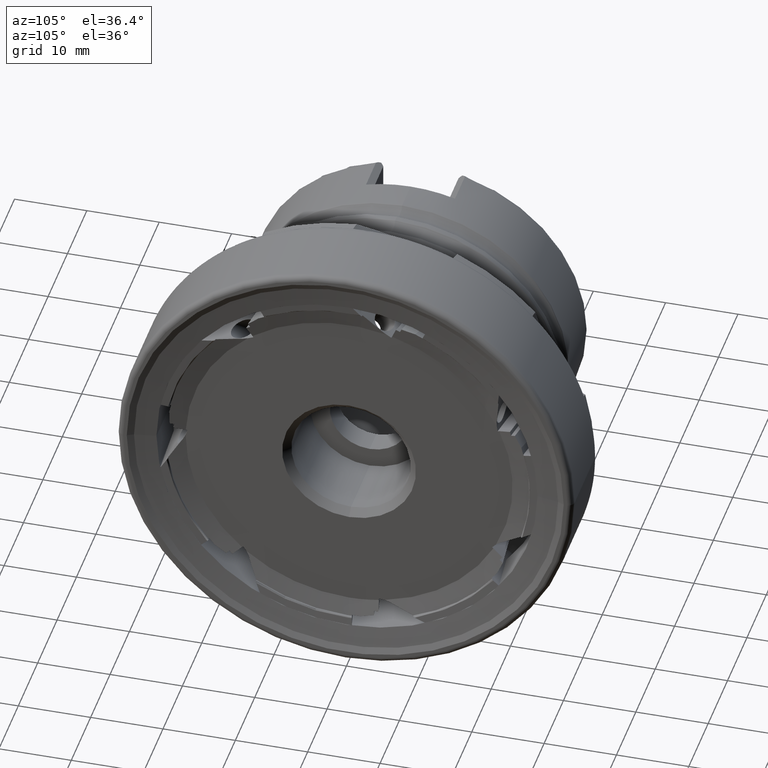
[diagram: clean part render]
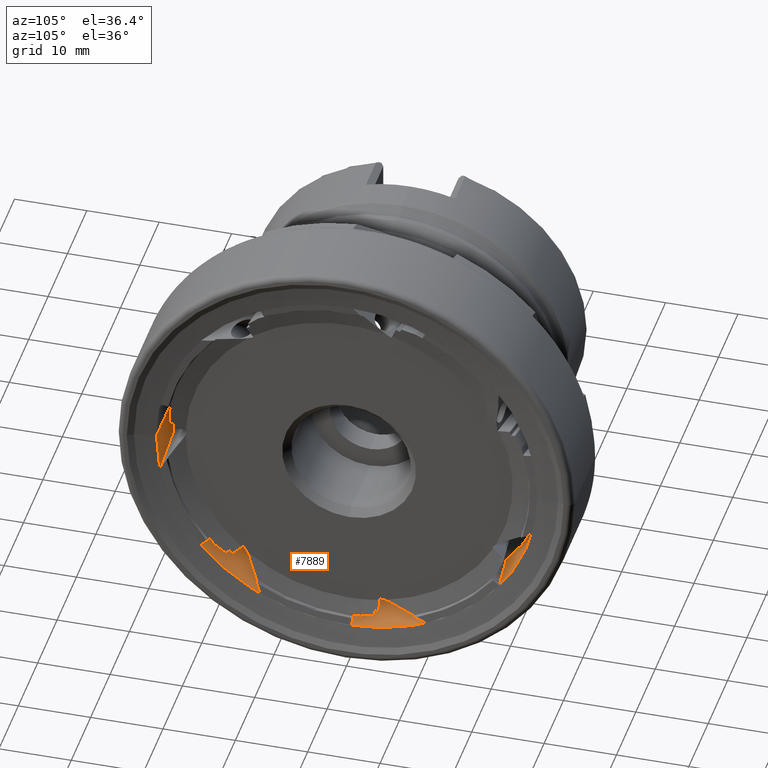
[diagram: same view with one face highlighted and labeled with its STEP entity id]
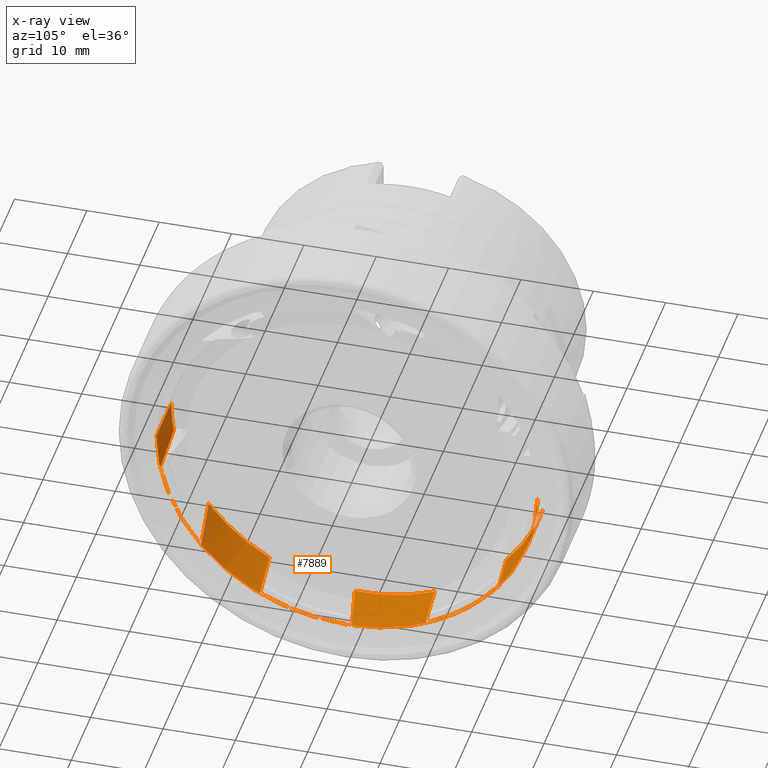
[diagram: x-ray of the same camera — body ghosted, the highlighted face saturated]
A machine part, auxiliary view. The second image highlights one B-rep face of the part: STEP entity #7889.
The next image is the same camera in x-ray: the body ghosted, the highlighted face saturated — about 0% of this face is hidden behind the body in this view.
In plain terms, the highlighted cylindrical surface (partial cylindrical patch) has radius 26.3377 mm, axis along (1, 0, -0).
Its self-contained STEP definition (entity closure, byte-faithful):
#650 = CARTESIAN_POINT ( 'NONE',  ( -0.3557611103710798800, 0.0000000000000000000, -26.33774320239812300 ) ) ;
#680 = CARTESIAN_POINT ( 'NONE',  ( -6.769027050296090300, 10.20196392134848100, -24.28161133744984600 ) ) ;
#684 = CARTESIAN_POINT ( 'NONE',  ( -0.3557611103710798800, 26.33774320239812300, 0.0000000000000000000 ) ) ;
#691 = CARTESIAN_POINT ( 'NONE',  ( -7.896370246742992400, -26.33774320239812300, 0.0000000000000000000 ) ) ;
#704 = CARTESIAN_POINT ( 'NONE',  ( -7.896370246742999500, 25.30964132982302300, -7.286890472017705500 ) ) ;
#734 = CARTESIAN_POINT ( 'NONE',  ( -0.3000000000000036000, -26.33774320239812300, 3.225443290958182400E-015 ) ) ;
#736 = CARTESIAN_POINT ( 'NONE',  ( -0.3557611103710798800, 10.81536209198497300, -24.01467592566518400 ) ) ;
#750 = CARTESIAN_POINT ( 'NONE',  ( -7.896370246742997700, 10.08318287752752900, -24.33117629819413400 ) ) ;
#755 = CARTESIAN_POINT ( 'NONE',  ( -7.896370246742997700, 19.98562374653297600, -17.15376228287792800 ) ) ;
#767 = CARTESIAN_POINT ( 'NONE',  ( -7.896370246742994100, -21.17090131028734500, -15.66747122880849800 ) ) ;
#778 = CARTESIAN_POINT ( 'NONE',  ( -0.3557611103710798800, -25.81922233571609800, -5.200430268192014300 ) ) ;
#782 = CARTESIAN_POINT ( 'NONE',  ( -6.769027050296090300, 25.34494865256235800, -7.163120464884453800 ) ) ;
#816 = CARTESIAN_POINT ( 'NONE',  ( -7.896370246742992400, -25.96486218048604000, -4.416180356805443600 ) ) ;
#823 = CARTESIAN_POINT ( 'NONE',  ( -7.896370246742995900, -0.9505188057772572300, -26.32058568868352600 ) ) ;
#847 = CARTESIAN_POINT ( 'NONE',  ( -0.3557611103710907600, 0.6522871451475134000, -26.32966461001248600 ) ) ;
#864 = CARTESIAN_POINT ( 'NONE',  ( -7.896370246742994100, -12.73611794099315600, -23.05359010628454500 ) ) ;
#884 = CARTESIAN_POINT ( 'NONE',  ( -0.3557611103710642800, 20.99205509781490900, -15.90629874501832400 ) ) ;
#885 = CARTESIAN_POINT ( 'NONE',  ( -0.3557611103710798800, -12.03216171218998700, -23.42869611239980200 ) ) ;
#889 = CARTESIAN_POINT ( 'NONE',  ( -0.3557611103710798800, 25.51869764771420500, -6.517114956789854800 ) ) ;
#896 = CARTESIAN_POINT ( 'NONE',  ( -6.769027050296093000, -25.94297118559758500, -4.543012553220901100 ) ) ;
#902 = CARTESIAN_POINT ( 'NONE',  ( -0.3000000000000100900, 26.33774320239812300, 0.0000000000000000000 ) ) ;
#912 = CARTESIAN_POINT ( 'NONE',  ( -0.3557611103710933700, -20.17866633204909000, -16.92625599638907400 ) ) ;
#917 = CARTESIAN_POINT ( 'NONE',  ( -6.769027050296086800, -12.62330772477946200, -23.11555361831058200 ) ) ;
#2221 = FACE_OUTER_BOUND ( 'NONE', #7159, .T. ) ;
#2229 = CYLINDRICAL_SURFACE ( 'NONE', #10728, 26.33774320239812300 ) ;
#3559 = CARTESIAN_POINT ( 'NONE',  ( 9.669514060643575000, 0.0000000000000000000, 0.0000000000000000000 ) ) ;
#3560 = DIRECTION ( 'NONE',  ( 1.000000000000000000, 1.224931307836576000E-016, -0.0000000000000000000 ) ) ;
#3568 = DIRECTION ( 'NONE',  ( -1.317290902751953200E-016, 1.000000000000000000, 0.0000000000000000000 ) ) ;
#4460 = EDGE_CURVE ( 'NONE', #6746, #6910, #9934, .T. ) ;
#4487 = EDGE_CURVE ( 'NONE', #6893, #6925, #8477, .T. ) ;
#4488 = EDGE_CURVE ( 'NONE', #6855, #6674, #9965, .T. ) ;
#4490 = EDGE_CURVE ( 'NONE', #6700, #6897, #9967, .T. ) ;
#4492 = EDGE_CURVE ( 'NONE', #6897, #6790, #8315, .T. ) ;
#4495 = EDGE_CURVE ( 'NONE', #6674, #6893, #9962, .T. ) ;
#4497 = EDGE_CURVE ( 'NONE', #6892, #6748, #9970, .T. ) ;
#4498 = EDGE_CURVE ( 'NONE', #6700, #6910, #9973, .T. ) ;
#4505 = EDGE_CURVE ( 'NONE', #6920, #6786, #9980, .T. ) ;
#4509 = EDGE_CURVE ( 'NONE', #6705, #6746, #9981, .T. ) ;
#4515 = EDGE_CURVE ( 'NONE', #6831, #6761, #9987, .T. ) ;
#4519 = EDGE_CURVE ( 'NONE', #6776, #6872, #9986, .T. ) ;
#4520 = EDGE_CURVE ( 'NONE', #6765, #6717, #9991, .T. ) ;
#4521 = EDGE_CURVE ( 'NONE', #6855, #6831, #8378, .T. ) ;
#4522 = EDGE_CURVE ( 'NONE', #6705, #6824, #9992, .T. ) ;
#4524 = EDGE_CURVE ( 'NONE', #6761, #6696, #8403, .T. ) ;
#4527 = EDGE_CURVE ( 'NONE', #6872, #6925, #8323, .T. ) ;
#4531 = EDGE_CURVE ( 'NONE', #6920, #6776, #8455, .T. ) ;
#4532 = EDGE_CURVE ( 'NONE', #6786, #6904, #8461, .T. ) ;
#4535 = EDGE_CURVE ( 'NONE', #6824, #6904, #8433, .T. ) ;
#4543 = EDGE_CURVE ( 'NONE', #6892, #6765, #8448, .T. ) ;
#4548 = EDGE_CURVE ( 'NONE', #6748, #6696, #8470, .T. ) ;
#4549 = EDGE_CURVE ( 'NONE', #6717, #6790, #8319, .T. ) ;
#4750 = ORIENTED_EDGE ( 'NONE', *, *, #4488, .T. ) ;
#4752 = ORIENTED_EDGE ( 'NONE', *, *, #4492, .T. ) ;
#4755 = ORIENTED_EDGE ( 'NONE', *, *, #4460, .T. ) ;
#4758 = ORIENTED_EDGE ( 'NONE', *, *, #4509, .T. ) ;
#4762 = ORIENTED_EDGE ( 'NONE', *, *, #4532, .T. ) ;
#4763 = ORIENTED_EDGE ( 'NONE', *, *, #4495, .T. ) ;
#4764 = ORIENTED_EDGE ( 'NONE', *, *, #4521, .F. ) ;
#4766 = ORIENTED_EDGE ( 'NONE', *, *, #4519, .F. ) ;
#4778 = ORIENTED_EDGE ( 'NONE', *, *, #4535, .F. ) ;
#4780 = ORIENTED_EDGE ( 'NONE', *, *, #4490, .T. ) ;
#4783 = ORIENTED_EDGE ( 'NONE', *, *, #4527, .F. ) ;
#4787 = ORIENTED_EDGE ( 'NONE', *, *, #4487, .T. ) ;
#4788 = ORIENTED_EDGE ( 'NONE', *, *, #4520, .F. ) ;
#4796 = ORIENTED_EDGE ( 'NONE', *, *, #4497, .T. ) ;
#4799 = ORIENTED_EDGE ( 'NONE', *, *, #4498, .F. ) ;
#4800 = ORIENTED_EDGE ( 'NONE', *, *, #4548, .T. ) ;
#4801 = ORIENTED_EDGE ( 'NONE', *, *, #4522, .F. ) ;
#4807 = ORIENTED_EDGE ( 'NONE', *, *, #4531, .F. ) ;
#4808 = ORIENTED_EDGE ( 'NONE', *, *, #4549, .F. ) ;
#4813 = ORIENTED_EDGE ( 'NONE', *, *, #4515, .F. ) ;
#4816 = ORIENTED_EDGE ( 'NONE', *, *, #4505, .T. ) ;
#4820 = ORIENTED_EDGE ( 'NONE', *, *, #4524, .F. ) ;
#4822 = ORIENTED_EDGE ( 'NONE', *, *, #4543, .F. ) ;
#6674 = VERTEX_POINT ( 'NONE', #650 ) ;
#6696 = VERTEX_POINT ( 'NONE', #680 ) ;
#6700 = VERTEX_POINT ( 'NONE', #684 ) ;
#6705 = VERTEX_POINT ( 'NONE', #691 ) ;
#6717 = VERTEX_POINT ( 'NONE', #704 ) ;
#6746 = VERTEX_POINT ( 'NONE', #734 ) ;
#6748 = VERTEX_POINT ( 'NONE', #736 ) ;
#6761 = VERTEX_POINT ( 'NONE', #750 ) ;
#6765 = VERTEX_POINT ( 'NONE', #755 ) ;
#6776 = VERTEX_POINT ( 'NONE', #767 ) ;
#6786 = VERTEX_POINT ( 'NONE', #778 ) ;
#6790 = VERTEX_POINT ( 'NONE', #782 ) ;
#6824 = VERTEX_POINT ( 'NONE', #816 ) ;
#6831 = VERTEX_POINT ( 'NONE', #823 ) ;
#6855 = VERTEX_POINT ( 'NONE', #847 ) ;
#6872 = VERTEX_POINT ( 'NONE', #864 ) ;
#6892 = VERTEX_POINT ( 'NONE', #884 ) ;
#6893 = VERTEX_POINT ( 'NONE', #885 ) ;
#6897 = VERTEX_POINT ( 'NONE', #889 ) ;
#6904 = VERTEX_POINT ( 'NONE', #896 ) ;
#6910 = VERTEX_POINT ( 'NONE', #902 ) ;
#6920 = VERTEX_POINT ( 'NONE', #912 ) ;
#6925 = VERTEX_POINT ( 'NONE', #917 ) ;
#7159 = EDGE_LOOP ( 'NONE', ( #4801, #4758, #4755, #4799, #4780, #4752, #4808, #4788, #4822, #4796, #4800, #4820, #4813, #4764, #4750, #4763, #4787, #4783, #4766, #4807, #4816, #4762, #4778 ) ) ;
#7889 = ADVANCED_FACE ( 'NONE', ( #2221 ), #2229, .F. ) ;
#8269 = AXIS2_PLACEMENT_3D ( 'NONE', #9537, #9538, #9539 ) ;
#8293 = AXIS2_PLACEMENT_3D ( 'NONE', #9622, #9623, #9624 ) ;
#8294 = AXIS2_PLACEMENT_3D ( 'NONE', #9650, #9651, #9652 ) ;
#8295 = AXIS2_PLACEMENT_3D ( 'NONE', #9668, #9669, #9670 ) ;
#8296 = AXIS2_PLACEMENT_3D ( 'NONE', #9674, #9675, #9676 ) ;
#8299 = AXIS2_PLACEMENT_3D ( 'NONE', #9703, #9704, #9705 ) ;
#8301 = AXIS2_PLACEMENT_3D ( 'NONE', #9766, #9767, #9768 ) ;
#8303 = AXIS2_PLACEMENT_3D ( 'NONE', #9776, #9777, #9778 ) ;
#8304 = AXIS2_PLACEMENT_3D ( 'NONE', #9780, #9781, #9782 ) ;
#8305 = AXIS2_PLACEMENT_3D ( 'NONE', #9788, #9789, #9790 ) ;
#8315 =( BOUNDED_CURVE ( )  B_SPLINE_CURVE ( 3, ( #9655, #9653, #9648, #9656 ),
 .UNSPECIFIED., .F., .F. ) 
 B_SPLINE_CURVE_WITH_KNOTS ( ( 4, 4 ),
 ( 2.376410749964307500, 2.401810847009365500 ),
 .UNSPECIFIED. ) 
 CURVE ( )  GEOMETRIC_REPRESENTATION_ITEM ( )  RATIONAL_B_SPLINE_CURVE ( ( 1.000000000000000000, 0.9999462369784729600, 0.9999462369784729600, 1.000000000000000000 ) ) 
 REPRESENTATION_ITEM ( '' )  );
#8319 = B_SPLINE_CURVE_WITH_KNOTS ( 'NONE', 3,
 ( #9876, #9877, #9890, #9891 ),
 .UNSPECIFIED., .F., .F.,
 ( 4, 4 ),
 ( 2.014737668395677500E-007, 0.001134836575455852400 ),
 .UNSPECIFIED. ) ;
#8323 = B_SPLINE_CURVE_WITH_KNOTS ( 'NONE', 3,
 ( #9802, #9796, #9804, #9805 ),
 .UNSPECIFIED., .F., .F.,
 ( 4, 4 ),
 ( 2.014737668412557800E-007, 0.001134836575455851800 ),
 .UNSPECIFIED. ) ;
#8378 =( BOUNDED_CURVE ( )  B_SPLINE_CURVE ( 3, ( #9783, #9770, #9779, #9784 ),
 .UNSPECIFIED., .F., .F. ) 
 B_SPLINE_CURVE_WITH_KNOTS ( ( 4, 4 ),
 ( 1.546027543818103500, 1.606893772764859100 ),
 .UNSPECIFIED. ) 
 CURVE ( )  GEOMETRIC_REPRESENTATION_ITEM ( )  RATIONAL_B_SPLINE_CURVE ( ( 1.000000000000000000, 0.9996912990081678900, 0.9996912990081678900, 1.000000000000000000 ) ) 
 REPRESENTATION_ITEM ( '' )  );
#8403 = B_SPLINE_CURVE_WITH_KNOTS ( 'NONE', 3,
 ( #9794, #9793, #9787, #9795 ),
 .UNSPECIFIED., .F., .F.,
 ( 4, 4 ),
 ( 2.014737668429859500E-007, 0.001134836575455852200 ),
 .UNSPECIFIED. ) ;
#8433 = B_SPLINE_CURVE_WITH_KNOTS ( 'NONE', 3,
 ( #9842, #9843, #9848, #9849 ),
 .UNSPECIFIED., .F., .F.,
 ( 4, 4 ),
 ( 2.014737668447740100E-007, 0.001134836575455845300 ),
 .UNSPECIFIED. ) ;
#8448 =( BOUNDED_CURVE ( )  B_SPLINE_CURVE ( 3, ( #9871, #9863, #9867, #9872 ),
 .UNSPECIFIED., .F., .F. ) 
 B_SPLINE_CURVE_WITH_KNOTS ( ( 4, 4 ),
 ( 1.546027543818103300, 1.606893772764859100 ),
 .UNSPECIFIED. ) 
 CURVE ( )  GEOMETRIC_REPRESENTATION_ITEM ( )  RATIONAL_B_SPLINE_CURVE ( ( 1.000000000000000000, 0.9996912990081678900, 0.9996912990081678900, 1.000000000000000000 ) ) 
 REPRESENTATION_ITEM ( '' )  );
#8455 =( BOUNDED_CURVE ( )  B_SPLINE_CURVE ( 3, ( #9832, #9831, #9814, #9833 ),
 .UNSPECIFIED., .F., .F. ) 
 B_SPLINE_CURVE_WITH_KNOTS ( ( 4, 4 ),
 ( 1.546027543818103500, 1.606893772764859100 ),
 .UNSPECIFIED. ) 
 CURVE ( )  GEOMETRIC_REPRESENTATION_ITEM ( )  RATIONAL_B_SPLINE_CURVE ( ( 1.000000000000000000, 0.9996912990081678900, 0.9996912990081678900, 1.000000000000000000 ) ) 
 REPRESENTATION_ITEM ( '' )  );
#8461 =( BOUNDED_CURVE ( )  B_SPLINE_CURVE ( 3, ( #9836, #9835, #9816, #9837 ),
 .UNSPECIFIED., .F., .F. ) 
 B_SPLINE_CURVE_WITH_KNOTS ( ( 4, 4 ),
 ( 2.376410749964307500, 2.401810847009365500 ),
 .UNSPECIFIED. ) 
 CURVE ( )  GEOMETRIC_REPRESENTATION_ITEM ( )  RATIONAL_B_SPLINE_CURVE ( ( 1.000000000000000000, 0.9999462369784729600, 0.9999462369784729600, 1.000000000000000000 ) ) 
 REPRESENTATION_ITEM ( '' )  );
#8470 =( BOUNDED_CURVE ( )  B_SPLINE_CURVE ( 3, ( #9881, #9882, #9886, #9887 ),
 .UNSPECIFIED., .F., .F. ) 
 B_SPLINE_CURVE_WITH_KNOTS ( ( 4, 4 ),
 ( 2.376410749964307500, 2.401810847009365500 ),
 .UNSPECIFIED. ) 
 CURVE ( )  GEOMETRIC_REPRESENTATION_ITEM ( )  RATIONAL_B_SPLINE_CURVE ( ( 1.000000000000000000, 0.9999462369784729600, 0.9999462369784729600, 1.000000000000000000 ) ) 
 REPRESENTATION_ITEM ( '' )  );
#8477 =( BOUNDED_CURVE ( )  B_SPLINE_CURVE ( 3, ( #9618, #9606, #9613, #9619 ),
 .UNSPECIFIED., .F., .F. ) 
 B_SPLINE_CURVE_WITH_KNOTS ( ( 4, 4 ),
 ( 2.376410749964307500, 2.401810847009366000 ),
 .UNSPECIFIED. ) 
 CURVE ( )  GEOMETRIC_REPRESENTATION_ITEM ( )  RATIONAL_B_SPLINE_CURVE ( ( 1.000000000000000000, 0.9999462369784729600, 0.9999462369784729600, 1.000000000000000000 ) ) 
 REPRESENTATION_ITEM ( '' )  );
#9537 = CARTESIAN_POINT ( 'NONE',  ( -0.3000000000000068700, -1.221196989679927700E-015, 0.0000000000000000000 ) ) ;
#9538 = DIRECTION ( 'NONE',  ( 1.000000000000000000, 1.224931307836576000E-016, -0.0000000000000000000 ) ) ;
#9539 = DIRECTION ( 'NONE',  ( -1.234960221329956100E-016, 1.000000000000000000, 0.0000000000000000000 ) ) ;
#9606 = CARTESIAN_POINT ( 'NONE',  ( -2.522458184460409000, -12.23053076306250000, -23.32682068205827600 ) ) ;
#9613 = CARTESIAN_POINT ( 'NONE',  ( -4.660328436133036200, -12.42759002842718100, -23.22243423856459500 ) ) ;
#9618 = CARTESIAN_POINT ( 'NONE',  ( -0.3557611103710798800, -12.03216171218998700, -23.42869611239980200 ) ) ;
#9619 = CARTESIAN_POINT ( 'NONE',  ( -6.769027050296086800, -12.62330772477946200, -23.11555361831058200 ) ) ;
#9622 = CARTESIAN_POINT ( 'NONE',  ( -0.3557611103710798800, 0.0000000000000000000, 0.0000000000000000000 ) ) ;
#9623 = DIRECTION ( 'NONE',  ( -1.000000000000000000, 0.0000000000000000000, 0.0000000000000000000 ) ) ;
#9624 = DIRECTION ( 'NONE',  ( 0.0000000000000000000, -1.083577672034152900E-013, -1.000000000000000000 ) ) ;
#9648 = CARTESIAN_POINT ( 'NONE',  ( -4.660328436132918000, 25.40559826793519700, -6.948526644361924000 ) ) ;
#9650 = CARTESIAN_POINT ( 'NONE',  ( -0.3557611103710798800, 0.0000000000000000000, 0.0000000000000000000 ) ) ;
#9651 = DIRECTION ( 'NONE',  ( -1.000000000000000000, 0.0000000000000000000, 0.0000000000000000000 ) ) ;
#9652 = DIRECTION ( 'NONE',  ( 0.0000000000000000000, 4.440892098500626200E-015, -1.000000000000000000 ) ) ;
#9653 = CARTESIAN_POINT ( 'NONE',  ( -2.522458184460301600, 25.46351771357688800, -6.733179897305261900 ) ) ;
#9655 = CARTESIAN_POINT ( 'NONE',  ( -0.3557611103710798800, 25.51869764771420500, -6.517114956789854800 ) ) ;
#9656 = CARTESIAN_POINT ( 'NONE',  ( -6.769027050296090300, 25.34494865256235800, -7.163120464884453800 ) ) ;
#9667 = DIRECTION ( 'NONE',  ( 1.000000000000000000, 1.224931307836576000E-016, -0.0000000000000000000 ) ) ;
#9668 = CARTESIAN_POINT ( 'NONE',  ( -0.3557611103710798800, 0.0000000000000000000, 0.0000000000000000000 ) ) ;
#9669 = DIRECTION ( 'NONE',  ( -1.000000000000000000, 0.0000000000000000000, 0.0000000000000000000 ) ) ;
#9670 = DIRECTION ( 'NONE',  ( 0.0000000000000000000, 0.0000000000000000000, -1.000000000000000000 ) ) ;
#9671 = CARTESIAN_POINT ( 'NONE',  ( 9.669514060643573200, 26.33774320239812300, 0.0000000000000000000 ) ) ;
#9674 = CARTESIAN_POINT ( 'NONE',  ( -0.3557611103710798800, 0.0000000000000000000, 0.0000000000000000000 ) ) ;
#9675 = DIRECTION ( 'NONE',  ( -1.000000000000000000, 0.0000000000000000000, 0.0000000000000000000 ) ) ;
#9676 = DIRECTION ( 'NONE',  ( 0.0000000000000000000, 2.664535259100376100E-015, -1.000000000000000000 ) ) ;
#9703 = CARTESIAN_POINT ( 'NONE',  ( -0.3557611103710798800, 0.0000000000000000000, 0.0000000000000000000 ) ) ;
#9704 = DIRECTION ( 'NONE',  ( -1.000000000000000000, 0.0000000000000000000, 0.0000000000000000000 ) ) ;
#9705 = DIRECTION ( 'NONE',  ( 0.0000000000000000000, 0.0000000000000000000, -1.000000000000000000 ) ) ;
#9713 = CARTESIAN_POINT ( 'NONE',  ( 9.669514060643578500, -26.33774320239812300, 3.225443290958182400E-015 ) ) ;
#9714 = DIRECTION ( 'NONE',  ( 1.000000000000000000, 1.224931307836576000E-016, -0.0000000000000000000 ) ) ;
#9766 = CARTESIAN_POINT ( 'NONE',  ( -7.896370246742995900, -2.151700163795301900E-015, 0.0000000000000000000 ) ) ;
#9767 = DIRECTION ( 'NONE',  ( 1.000000000000000000, 1.224931307836576000E-016, -0.0000000000000000000 ) ) ;
#9768 = DIRECTION ( 'NONE',  ( -1.317290902751953500E-016, 1.000000000000000000, 0.0000000000000000000 ) ) ;
#9770 = CARTESIAN_POINT ( 'NONE',  ( -2.869342766872022800, 0.1180088707648354100, -26.34290073950647900 ) ) ;
#9776 = CARTESIAN_POINT ( 'NONE',  ( -7.896370246742995900, -2.151700163795301900E-015, 0.0000000000000000000 ) ) ;
#9777 = DIRECTION ( 'NONE',  ( 1.000000000000000000, 1.224931307836576000E-016, -0.0000000000000000000 ) ) ;
#9778 = DIRECTION ( 'NONE',  ( -1.317290902751953500E-016, 1.000000000000000000, 0.0000000000000000000 ) ) ;
#9779 = CARTESIAN_POINT ( 'NONE',  ( -5.383655316440484600, -0.4164247597352252500, -26.33987349788434100 ) ) ;
#9780 = CARTESIAN_POINT ( 'NONE',  ( -7.896370246742995900, -2.151700163795301900E-015, 0.0000000000000000000 ) ) ;
#9781 = DIRECTION ( 'NONE',  ( 1.000000000000000000, 1.224931307836576000E-016, -0.0000000000000000000 ) ) ;
#9782 = DIRECTION ( 'NONE',  ( -1.317290902751953500E-016, 1.000000000000000000, 0.0000000000000000000 ) ) ;
#9783 = CARTESIAN_POINT ( 'NONE',  ( -0.3557611103710907600, 0.6522871451475134000, -26.32966461001248600 ) ) ;
#9784 = CARTESIAN_POINT ( 'NONE',  ( -7.896370246742995900, -0.9505188057772572300, -26.32058568868352600 ) ) ;
#9787 = CARTESIAN_POINT ( 'NONE',  ( -7.145141593280128800, 10.16529408995223700, -24.29701823494557500 ) ) ;
#9788 = CARTESIAN_POINT ( 'NONE',  ( -7.896370246742995900, -2.151700163795301900E-015, 0.0000000000000000000 ) ) ;
#9789 = DIRECTION ( 'NONE',  ( 1.000000000000000000, 1.224931307836576000E-016, -0.0000000000000000000 ) ) ;
#9790 = DIRECTION ( 'NONE',  ( -1.317290902751953500E-016, 1.000000000000000000, 0.0000000000000000000 ) ) ;
#9793 = CARTESIAN_POINT ( 'NONE',  ( -7.520925078851424100, 10.12572728877091800, -24.31354529368694300 ) ) ;
#9794 = CARTESIAN_POINT ( 'NONE',  ( -7.896370246742997700, 10.08318287752752900, -24.33117629819413400 ) ) ;
#9795 = CARTESIAN_POINT ( 'NONE',  ( -6.769027050296090300, 10.20196392134848100, -24.28161133744984600 ) ) ;
#9796 = CARTESIAN_POINT ( 'NONE',  ( -7.520925078851421500, -12.69580746006554900, -23.07585991489093800 ) ) ;
#9802 = CARTESIAN_POINT ( 'NONE',  ( -7.896370246742994100, -12.73611794099315600, -23.05359010628454500 ) ) ;
#9804 = CARTESIAN_POINT ( 'NONE',  ( -7.145141593280123400, -12.65821658820024000, -23.09649003313508000 ) ) ;
#9805 = CARTESIAN_POINT ( 'NONE',  ( -6.769027050296086800, -12.62330772477946200, -23.11555361831058200 ) ) ;
#9814 = CARTESIAN_POINT ( 'NONE',  ( -5.383655316440488100, -20.85297893580769500, -16.09706852093978200 ) ) ;
#9816 = CARTESIAN_POINT ( 'NONE',  ( -4.660328436132968700, -25.90450583165893400, -4.762669786649937000 ) ) ;
#9831 = CARTESIAN_POINT ( 'NONE',  ( -2.869342766872025500, -20.52213181022579400, -16.51679301283358800 ) ) ;
#9832 = CARTESIAN_POINT ( 'NONE',  ( -0.3557611103710933700, -20.17866633204909000, -16.92625599638907400 ) ) ;
#9833 = CARTESIAN_POINT ( 'NONE',  ( -7.896370246742994100, -21.17090131028734500, -15.66747122880849800 ) ) ;
#9835 = CARTESIAN_POINT ( 'NONE',  ( -2.522458184460307800, -25.86325399720851000, -4.981820807194679000 ) ) ;
#9836 = CARTESIAN_POINT ( 'NONE',  ( -0.3557611103710798800, -25.81922233571609800, -5.200430268192014300 ) ) ;
#9837 = CARTESIAN_POINT ( 'NONE',  ( -6.769027050296093000, -25.94297118559758500, -4.543012553220901100 ) ) ;
#9842 = CARTESIAN_POINT ( 'NONE',  ( -7.896370246742992400, -25.96486218048604000, -4.416180356805443600 ) ) ;
#9843 = CARTESIAN_POINT ( 'NONE',  ( -7.520925078851419700, -25.95714024419667600, -4.461581358423485400 ) ) ;
#9848 = CARTESIAN_POINT ( 'NONE',  ( -7.145141593280127900, -25.94983199487598200, -4.503833753837575700 ) ) ;
#9849 = CARTESIAN_POINT ( 'NONE',  ( -6.769027050296093000, -25.94297118559758500, -4.543012553220901100 ) ) ;
#9863 = CARTESIAN_POINT ( 'NONE',  ( -2.869342766872006000, 20.66928646512704400, -16.33226691208497500 ) ) ;
#9867 = CARTESIAN_POINT ( 'NONE',  ( -5.383655316440474800, 20.33370575393468700, -16.74821649542044000 ) ) ;
#9871 = CARTESIAN_POINT ( 'NONE',  ( -0.3557611103710642800, 20.99205509781490900, -15.90629874501832400 ) ) ;
#9872 = CARTESIAN_POINT ( 'NONE',  ( -7.896370246742997700, 19.98562374653297600, -17.15376228287792800 ) ) ;
#9876 = CARTESIAN_POINT ( 'NONE',  ( -7.896370246742999500, 25.30964132982302300, -7.286890472017705500 ) ) ;
#9877 = CARTESIAN_POINT ( 'NONE',  ( -7.520925078851424100, 25.32238286196810900, -7.242635160397784800 ) ) ;
#9881 = CARTESIAN_POINT ( 'NONE',  ( -0.3557611103710798800, 10.81536209198497300, -24.01467592566518400 ) ) ;
#9882 = CARTESIAN_POINT ( 'NONE',  ( -2.522458184460251400, 10.61203159303059000, -24.10624880290669100 ) ) ;
#9886 = CARTESIAN_POINT ( 'NONE',  ( -4.660328436132912700, 10.40755454284770700, -24.19523205751021100 ) ) ;
#9887 = CARTESIAN_POINT ( 'NONE',  ( -6.769027050296090300, 10.20196392134848100, -24.28161133744984600 ) ) ;
#9890 = CARTESIAN_POINT ( 'NONE',  ( -7.145141593280125200, 25.33413098416022500, -7.201396136993740700 ) ) ;
#9891 = CARTESIAN_POINT ( 'NONE',  ( -6.769027050296090300, 25.34494865256235800, -7.163120464884453800 ) ) ;
#9934 = CIRCLE ( 'NONE', #8269, 26.33774320239812300 ) ;
#9962 = CIRCLE ( 'NONE', #8295, 26.33774320239812300 ) ;
#9965 = CIRCLE ( 'NONE', #8293, 26.33774320239812300 ) ;
#9967 = CIRCLE ( 'NONE', #8294, 26.33774320239812300 ) ;
#9970 = CIRCLE ( 'NONE', #8296, 26.33774320239812300 ) ;
#9973 = LINE ( 'NONE', #9671, #9975 ) ;
#9975 = VECTOR ( 'NONE', #9667, 1000.000000000000000 ) ;
#9980 = CIRCLE ( 'NONE', #8299, 26.33774320239812300 ) ;
#9981 = LINE ( 'NONE', #9713, #9983 ) ;
#9983 = VECTOR ( 'NONE', #9714, 1000.000000000000000 ) ;
#9986 = CIRCLE ( 'NONE', #8303, 26.33774320239811900 ) ;
#9987 = CIRCLE ( 'NONE', #8301, 26.33774320239811900 ) ;
#9991 = CIRCLE ( 'NONE', #8304, 26.33774320239811900 ) ;
#9992 = CIRCLE ( 'NONE', #8305, 26.33774320239811900 ) ;
#10728 = AXIS2_PLACEMENT_3D ( 'NONE', #3559, #3560, #3568 ) ;